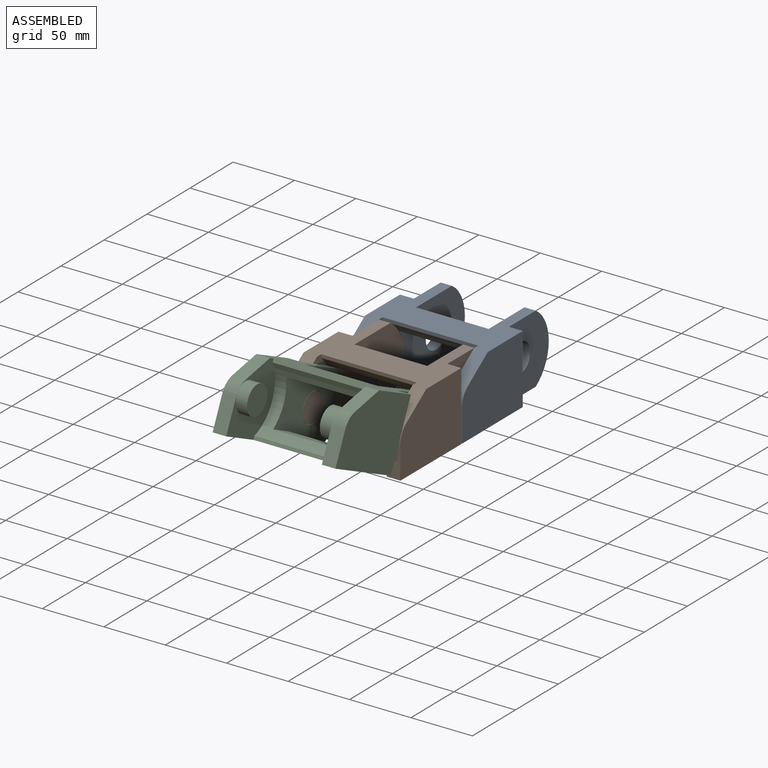
[diagram: assembled view]
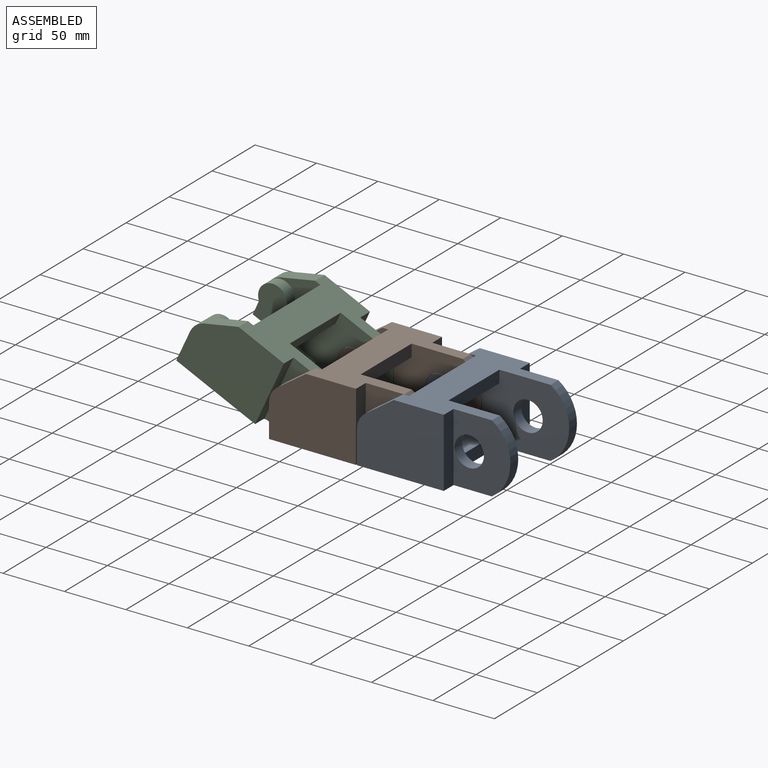
[diagram: assembled view, second angle]
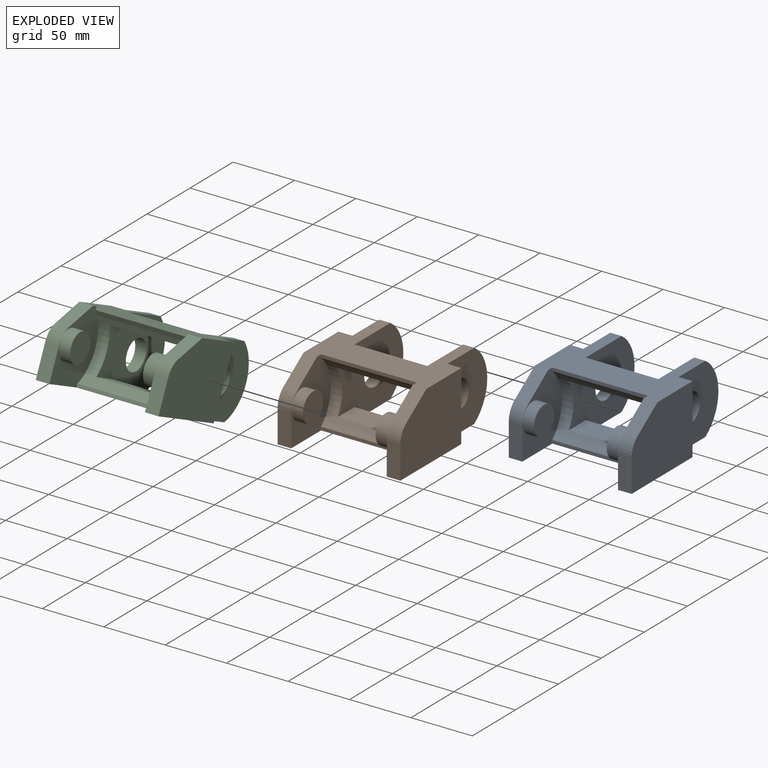
[diagram: exploded view]
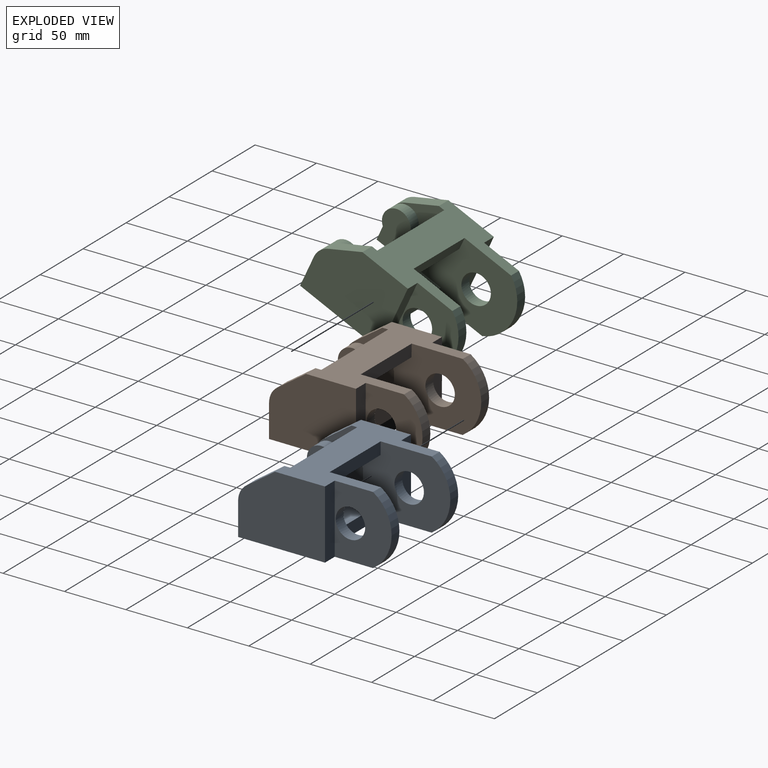
[diagram: exploded view, second angle]
ASSEMBLY  parts=3 mates=2
PART A: 33 faces, bbox 100x117x56 mm
  f0: plane 56x46.3mm, normal (1,0,0), area 1890.1mm2, adj f16,f18,f19,f22,f28
  f1: plane 76.18x56mm, normal (-1,0,0), area 3049.6mm2, adj f5,f6,f7,f17,f18,f19,f20,f22
  f2: plane 76.18x56mm, normal (1,0,0), area 3049.6mm2, adj f5,f6,f7,f17,f18,f19,f20,f21
  f3: plane 77.82x2.69mm, normal (0,-1,0), area 209.4mm2, adj f12,f13,f19,f20
  f4: plane 77.82x2.69mm, normal (0,-1,0), area 209.4mm2, adj f12,f13,f18,f20
  f5: plane 59.17x19.39mm, normal (0,0,1), area 1147.2mm2, adj f1,f2,f17,f20
  f6: plane 59.17x19.39mm, normal (0,0,-1), area 1147.2mm2, adj f1,f2,f7,f20
  f7: plane 59.17x10mm, normal (0,1,0), area 591.7mm2, adj f1,f2,f6,f18
  f8: plane 56x46.3mm, normal (-1,0,0), area 1890.1mm2, adj f9,f18,f19,f21,f27
  f9: plane 56x11.29mm, normal (0,1,0), area 632.3mm2, adj f8,f10,f18,f19
  f10: plane 70.72x56mm, normal (-1,0,0), area 3635mm2, adj f9,f11,f18,f19,f30,f31
  f11: plane 26.7x11.09mm, normal (0,-1,0), area 296.1mm2, adj f10,f12,f19,f31
  f12: plane 56x46mm, normal (1,0,0), area 1580.3mm2, adj f3,f4,f11,f18,f19,f20,f24,f30
  f13: plane 56x46mm, normal (-1,0,0), area 1580.3mm2, adj f3,f4,f14,f18,f19,f20,f26,f29
  f14: plane 26.7x11.09mm, normal (0,-1,0), area 296.1mm2, adj f13,f15,f19,f32
  f15: plane 70.72x56mm, normal (1,0,0), area 3635mm2, adj f14,f16,f18,f19,f29,f32
  f16: plane 56x11.29mm, normal (0,1,0), area 632.3mm2, adj f0,f15,f18,f19
  f17: plane 59.17x10mm, normal (0,1,0), area 591.7mm2, adj f1,f2,f5,f19
  f18: plane 100x71.91mm, normal (0,0,1), area 3654.7mm2, adj f0,f1,f2,f4,f7,f8,f9,f10
  f19: plane 101.91x100mm, normal (0,0,-1), area 4320.2mm2, adj f0,f1,f2,f3,f8,f9,f10,f11
  f20: cylinder r=34mm len=77.82mm, axis (-1,0,0), area 2198.1mm2, adj f1,f2,f3,f4,f5,f6,f12,f13
  f21: cylinder r=33.5mm len=56mm, axis (1,0,0), area 605mm2, adj f2,f8,f18,f19
  f22: cylinder r=33.5mm len=56mm, axis (1,0,0), area 605mm2, adj f0,f1,f18,f19
  f23: plane 23.5x23.5mm, normal (1,0,0), area 433.7mm2, adj f24
  f24: cylinder r=11.75mm len=23.5mm, axis (-1,0,0), area 688.4mm2, adj f12,f23
  f25: plane 23.5x23.5mm, normal (-1,0,0), area 433.7mm2, adj f26
  f26: cylinder r=11.75mm len=23.5mm, axis (1,0,0), area 688.4mm2, adj f13,f25
  f27: cylinder r=12mm len=24mm, axis (1,0,0), area 687.9mm2, adj f2,f8
  f28: cylinder r=12mm len=24mm, axis (1,0,0), area 687.9mm2, adj f0,f1
  f29: plane 23.2x16.24mm, normal (0,-0.57,0.82), area 314.1mm2, adj f13,f15,f18,f32
  f30: plane 23.2x16.24mm, normal (0,-0.57,0.82), area 314.1mm2, adj f10,f12,f18,f31
  f31: cylinder r=15.95mm len=13.07mm, axis (1,0,0), area 169.8mm2, adj f10,f11,f12,f30
  f32: cylinder r=15.95mm len=13.07mm, axis (1,0,0), area 169.8mm2, adj f13,f14,f15,f29
PART B: same geometry as A
PART C: same geometry as A
PLACE A t=(-8.5,17.33,2.77)mm fixed
PLACE B rot(axis=(-1,0,0),0.1deg) t=(-8.5,-54.25,2.82)mm
PLACE C rot(axis=(-1,0,0),24.8deg) t=(-8.5,-135.32,15.28)mm
MATE revolute A.f20 <-> B.f21  axis (1,0,0) through (-38.08,-30.91,30.77)mm
MATE revolute C.f21 <-> B.f20  axis (1,0,0) through (-38.08,-102.43,30.92)mm
